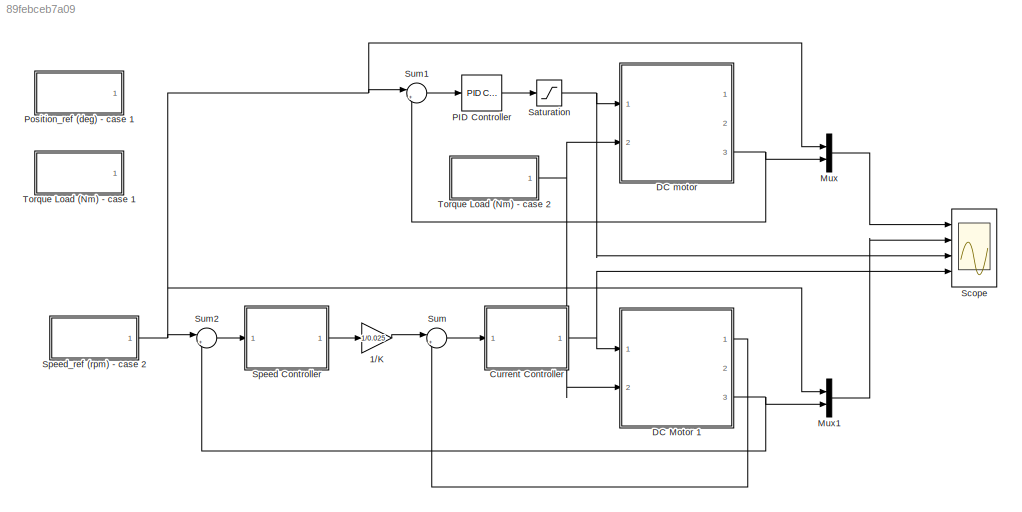
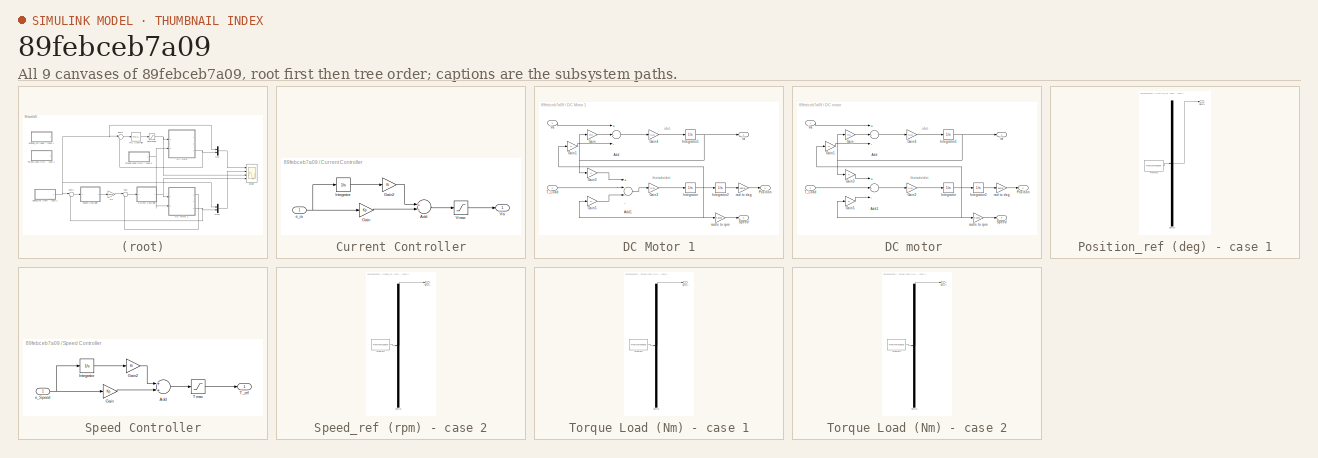
[diagram: thumbnail index - all 9 canvases of the model, root first then tree order]
MODEL slx_89febceb7a09
KIND model
CONFIG AbsTol = auto
CONFIG EnableMultiTasking = off
CONFIG FixedStep = auto
CONFIG MaxStep = auto
CONFIG MinStep = auto
CONFIG RelTol = 1e-3
CONFIG SampleTimeConstraint = Unconstrained
CONFIG Solver = VariableStepAuto
CONFIG SolverName = VariableStepAuto
CONFIG StartTime = 0.0
CONFIG StopTime = 20
BLOCK [Gain] 1//K
  Gain = 1/0.025
  OutDataTypeStr = Inherit: Inherit via internal rule
  ParamDataTypeStr = Inherit: Inherit via internal rule
  SaturateOnIntegerOverflow = off
BLOCK [SubSystem] Current Controller
  Ports = [1, 1]
  RequestExecContextInheritance = off
  Variant = off
BLOCK [Sum] Current Controller/Add
  InputSameDT = off
  OutDataTypeStr = Inherit: Inherit via internal rule
  Ports = [2, 1]
  SaturateOnIntegerOverflow = off
BLOCK [Gain] Current Controller/Gain
  Gain = Kp
  OutDataTypeStr = Inherit: Inherit via internal rule
  ParamDataTypeStr = Inherit: Inherit via internal rule
  SaturateOnIntegerOverflow = off
BLOCK [Gain] Current Controller/Gain2
  Gain = Ki
  OutDataTypeStr = Inherit: Inherit via internal rule
  ParamDataTypeStr = Inherit: Inherit via internal rule
  SaturateOnIntegerOverflow = off
BLOCK [Integrator] Current Controller/Integrator
  Ports = [1, 1]
BLOCK [Outport] Current Controller/Va 
  IconDisplay = Port number
BLOCK [Saturate] Current Controller/Vmax
  InputPortMap = u0
  LowerLimit = -Vmax
  Ports = [1, 1]
  UpperLimit = Vmax
BLOCK [Inport] Current Controller/e_ia
  IconDisplay = Port number
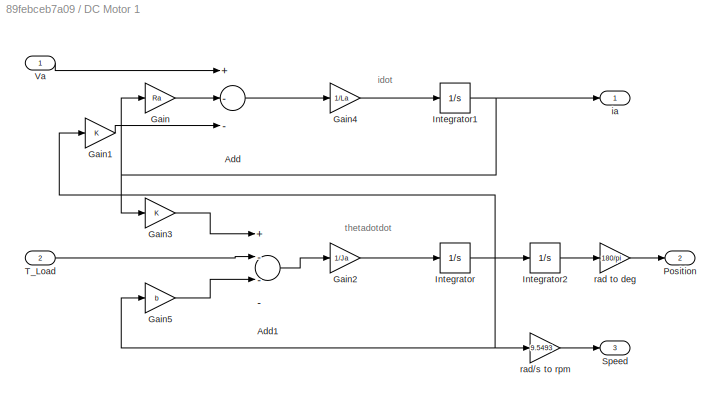
BLOCK [SubSystem] DC Motor 1
  Ports = [2, 3]
  RequestExecContextInheritance = off
  Variant = off
BLOCK [Sum] DC Motor 1/Add
  InputSameDT = off
  Inputs = +--
  OutDataTypeStr = Inherit: Inherit via internal rule
  Ports = [3, 1]
  SaturateOnIntegerOverflow = off
BLOCK [Sum] DC Motor 1/Add1
  InputSameDT = off
  Inputs = +---
  OutDataTypeStr = Inherit: Inherit via internal rule
  Ports = [4, 1]
  SaturateOnIntegerOverflow = off
BLOCK [Gain] DC Motor 1/Gain
  Gain = Ra
  OutDataTypeStr = Inherit: Inherit via internal rule
  ParamDataTypeStr = Inherit: Inherit via internal rule
  SaturateOnIntegerOverflow = off
BLOCK [Gain] DC Motor 1/Gain1
  Gain = K
  OutDataTypeStr = Inherit: Inherit via internal rule
  ParamDataTypeStr = Inherit: Inherit via internal rule
  SaturateOnIntegerOverflow = off
BLOCK [Gain] DC Motor 1/Gain2
  Gain = 1/Ja
  OutDataTypeStr = Inherit: Inherit via internal rule
  ParamDataTypeStr = Inherit: Inherit via internal rule
  SaturateOnIntegerOverflow = off
BLOCK [Gain] DC Motor 1/Gain3
  Gain = K
  OutDataTypeStr = Inherit: Inherit via internal rule
  ParamDataTypeStr = Inherit: Inherit via internal rule
  SaturateOnIntegerOverflow = off
BLOCK [Gain] DC Motor 1/Gain4
  Gain = 1/La
  OutDataTypeStr = Inherit: Inherit via internal rule
  ParamDataTypeStr = Inherit: Inherit via internal rule
  SaturateOnIntegerOverflow = off
BLOCK [Gain] DC Motor 1/Gain5
  Gain = b
  OutDataTypeStr = Inherit: Inherit via internal rule
  ParamDataTypeStr = Inherit: Inherit via internal rule
  SaturateOnIntegerOverflow = off
BLOCK [Integrator] DC Motor 1/Integrator
  Ports = [1, 1]
BLOCK [Integrator] DC Motor 1/Integrator1
  Ports = [1, 1]
BLOCK [Integrator] DC Motor 1/Integrator2
  Ports = [1, 1]
BLOCK [Outport] DC Motor 1/Position
  IconDisplay = Port number
  Port = 2
BLOCK [Outport] DC Motor 1/Speed 
  IconDisplay = Port number
  Port = 3
BLOCK [Inport] DC Motor 1/T_Load
  IconDisplay = Port number
  Port = 2
BLOCK [Inport] DC Motor 1/Va 
  IconDisplay = Port number
BLOCK [Outport] DC Motor 1/ia
  IconDisplay = Port number
BLOCK [Gain] DC Motor 1/rad to deg
  Gain = 180/pi
  OutDataTypeStr = Inherit: Inherit via internal rule
  ParamDataTypeStr = Inherit: Inherit via internal rule
  SaturateOnIntegerOverflow = off
BLOCK [Gain] DC Motor 1/rad//s to rpm
  Gain = 9.5493
  OutDataTypeStr = Inherit: Inherit via internal rule
  ParamDataTypeStr = Inherit: Inherit via internal rule
  SaturateOnIntegerOverflow = off
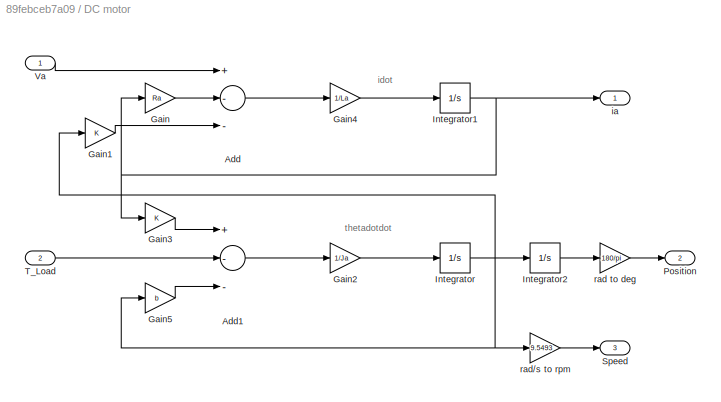
BLOCK [SubSystem] DC motor 
  Ports = [2, 3]
  RequestExecContextInheritance = off
  Variant = off
BLOCK [Sum] DC motor /Add
  InputSameDT = off
  Inputs = +--
  OutDataTypeStr = Inherit: Inherit via internal rule
  Ports = [3, 1]
  SaturateOnIntegerOverflow = off
BLOCK [Sum] DC motor /Add1
  InputSameDT = off
  Inputs = +--
  OutDataTypeStr = Inherit: Inherit via internal rule
  Ports = [3, 1]
  SaturateOnIntegerOverflow = off
BLOCK [Gain] DC motor /Gain
  Gain = Ra
  OutDataTypeStr = Inherit: Inherit via internal rule
  ParamDataTypeStr = Inherit: Inherit via internal rule
  SaturateOnIntegerOverflow = off
BLOCK [Gain] DC motor /Gain1
  Gain = K
  OutDataTypeStr = Inherit: Inherit via internal rule
  ParamDataTypeStr = Inherit: Inherit via internal rule
  SaturateOnIntegerOverflow = off
BLOCK [Gain] DC motor /Gain2
  Gain = 1/Ja
  OutDataTypeStr = Inherit: Inherit via internal rule
  ParamDataTypeStr = Inherit: Inherit via internal rule
  SaturateOnIntegerOverflow = off
BLOCK [Gain] DC motor /Gain3
  Gain = K
  OutDataTypeStr = Inherit: Inherit via internal rule
  ParamDataTypeStr = Inherit: Inherit via internal rule
  SaturateOnIntegerOverflow = off
BLOCK [Gain] DC motor /Gain4
  Gain = 1/La
  OutDataTypeStr = Inherit: Inherit via internal rule
  ParamDataTypeStr = Inherit: Inherit via internal rule
  SaturateOnIntegerOverflow = off
BLOCK [Gain] DC motor /Gain5
  Gain = b
  OutDataTypeStr = Inherit: Inherit via internal rule
  ParamDataTypeStr = Inherit: Inherit via internal rule
  SaturateOnIntegerOverflow = off
BLOCK [Integrator] DC motor /Integrator
  Ports = [1, 1]
BLOCK [Integrator] DC motor /Integrator1
  Ports = [1, 1]
BLOCK [Integrator] DC motor /Integrator2
  Ports = [1, 1]
BLOCK [Outport] DC motor /Position
  IconDisplay = Port number
  Port = 2
BLOCK [Outport] DC motor /Speed 
  IconDisplay = Port number
  Port = 3
BLOCK [Inport] DC motor /T_Load
  IconDisplay = Port number
  Port = 2
BLOCK [Inport] DC motor /Va 
  IconDisplay = Port number
BLOCK [Outport] DC motor /ia
  IconDisplay = Port number
BLOCK [Gain] DC motor /rad to deg
  Gain = 180/pi
  OutDataTypeStr = Inherit: Inherit via internal rule
  ParamDataTypeStr = Inherit: Inherit via internal rule
  SaturateOnIntegerOverflow = off
BLOCK [Gain] DC motor /rad//s to rpm
  Gain = 9.5493
  OutDataTypeStr = Inherit: Inherit via internal rule
  ParamDataTypeStr = Inherit: Inherit via internal rule
  SaturateOnIntegerOverflow = off
BLOCK [Mux] Mux
  DisplayOption = bar
  Inputs = 2
  Ports = [2, 1]
BLOCK [Mux] Mux1
  DisplayOption = bar
  Inputs = 2
  Ports = [2, 1]
BLOCK [Reference] PID Controller  REF=simulink/Continuous/PID Controller
  Ports = [1, 1]
  SourceBlock = simulink/Continuous/PID Controller
  SourceType = PID 1dof
BLOCK [SubSystem] Position_ref (deg) - case 1
  ClipboardFcn = sigbuilder_block('clipboard');
  CloseFcn = sigbuilder_block('close');
  ContinueFcn = sigbuilder_block('continue');
  CopyFcn = sigbuilder_block('copy');
  DeleteFcn = sigbuilder_block('delete');
  LoadFcn = sigbuilder_block('load');
  MaskHideContents = on
  ModelCloseFcn = sigbuilder_block('modelClose');
  NameChangeFcn = sigbuilder_block('namechange');
  OpenFcn = sigbuilder_block('open',[196.5 100.5 550.5 359.25 ]);
  PauseFcn = sigbuilder_block('pause');
  Ports = [0, 1]
  PreSaveFcn = sigbuilder_block('preSave');
  RequestExecContextInheritance = off
  ShowPortLabels = none
  StartFcn = sigbuilder_block('start');
  StopFcn = sigbuilder_block('stop');
  Tag = STV Subsys
  Variant = off
BLOCK [Demux] Position_ref (deg) - case 1/Demux
  Outputs = 1
  Ports = [1, 1]
  Tag = STV Demux
BLOCK [FromWorkspace] Position_ref (deg) - case 1/FromWs
  SampleTime = 0
  Tag = STV FromWs
  VariableName = tuvar
  ZeroCross = on
BLOCK [Outport] Position_ref (deg) - case 1/Signal 1
  IconDisplay = Port number
  Tag = STV Outport
BLOCK [Saturate] Saturation
  InputPortMap = u0
  LowerLimit = -12
  Ports = [1, 1]
  UpperLimit = 12
BLOCK [Scope] Scope
  NumInputPorts = 4
  Ports = [4]
  ScopeSpecificationString = Simulink.scopes.TimeScopeBlockCfg('CurrentConfiguration', extmgr.ConfigurationSet(extmgr.Configuration('Core','General UI',true,'FigureColor',[1 1 1]),extmgr.Configuration('Core','Source UI',true),extmgr.Configuration('Sources','WiredSimulink',true,'DataLoggingDecimateData',true),extmgr.Configuration('Visuals','Time Domain',true,'PlotType','Line','SerializedDisplays',{struct('MinYLimReal','-474.87...<+4697ch>
BLOCK [SubSystem] Speed Controller
  Ports = [1, 1]
  RequestExecContextInheritance = off
  Variant = off
BLOCK [Sum] Speed Controller/Add
  InputSameDT = off
  OutDataTypeStr = Inherit: Inherit via internal rule
  Ports = [2, 1]
  SaturateOnIntegerOverflow = off
BLOCK [Gain] Speed Controller/Gain
  Gain = Kp
  OutDataTypeStr = Inherit: Inherit via internal rule
  ParamDataTypeStr = Inherit: Inherit via internal rule
  SaturateOnIntegerOverflow = off
BLOCK [Gain] Speed Controller/Gain2
  Gain = Ki
  OutDataTypeStr = Inherit: Inherit via internal rule
  ParamDataTypeStr = Inherit: Inherit via internal rule
  SaturateOnIntegerOverflow = off
BLOCK [Integrator] Speed Controller/Integrator
  Ports = [1, 1]
BLOCK [Outport] Speed Controller/T_ref 
  IconDisplay = Port number
BLOCK [Saturate] Speed Controller/Tmax
  InputPortMap = u0
  LowerLimit = -Tmax
  Ports = [1, 1]
  UpperLimit = Tmax
BLOCK [Inport] Speed Controller/e_Speed
  IconDisplay = Port number
BLOCK [SubSystem] Speed_ref (rpm) - case 2
  ClipboardFcn = sigbuilder_block('clipboard');
  CloseFcn = sigbuilder_block('close');
  ContinueFcn = sigbuilder_block('continue');
  CopyFcn = sigbuilder_block('copy');
  DeleteFcn = sigbuilder_block('delete');
  LoadFcn = sigbuilder_block('load');
  MaskHideContents = on
  ModelCloseFcn = sigbuilder_block('modelClose');
  NameChangeFcn = sigbuilder_block('namechange');
  OpenFcn = sigbuilder_block('open',[115.5 51 550.5 359.25 ]);
  PauseFcn = sigbuilder_block('pause');
  Ports = [0, 1]
  PreSaveFcn = sigbuilder_block('preSave');
  RequestExecContextInheritance = off
  ShowPortLabels = none
  StartFcn = sigbuilder_block('start');
  StopFcn = sigbuilder_block('stop');
  Tag = STV Subsys
  Variant = off
BLOCK [Demux] Speed_ref (rpm) - case 2/Demux
  Outputs = 1
  Ports = [1, 1]
  Tag = STV Demux
BLOCK [FromWorkspace] Speed_ref (rpm) - case 2/FromWs
  SampleTime = 0
  Tag = STV FromWs
  VariableName = tuvar
  ZeroCross = on
BLOCK [Outport] Speed_ref (rpm) - case 2/Signal 1
  IconDisplay = Port number
  Tag = STV Outport
BLOCK [Sum] Sum
  IconShape = round
  InputSameDT = off
  Inputs = |+-
  OutDataTypeStr = Inherit: Inherit via internal rule
  Ports = [2, 1]
  SaturateOnIntegerOverflow = off
BLOCK [Sum] Sum1
  IconShape = round
  InputSameDT = off
  Inputs = |+-
  OutDataTypeStr = Inherit: Inherit via internal rule
  Ports = [2, 1]
  SaturateOnIntegerOverflow = off
BLOCK [Sum] Sum2
  IconShape = round
  InputSameDT = off
  Inputs = |+-
  OutDataTypeStr = Inherit: Inherit via internal rule
  Ports = [2, 1]
  SaturateOnIntegerOverflow = off
BLOCK [SubSystem] Torque Load (Nm) - case 1
  ClipboardFcn = sigbuilder_block('clipboard');
  CloseFcn = sigbuilder_block('close');
  ContinueFcn = sigbuilder_block('continue');
  CopyFcn = sigbuilder_block('copy');
  DeleteFcn = sigbuilder_block('delete');
  LoadFcn = sigbuilder_block('load');
  MaskHideContents = on
  ModelCloseFcn = sigbuilder_block('modelClose');
  NameChangeFcn = sigbuilder_block('namechange');
  OpenFcn = sigbuilder_block('open',[196.5 100.5 550.5 359.25 ]);
  PauseFcn = sigbuilder_block('pause');
  Ports = [0, 1]
  PreSaveFcn = sigbuilder_block('preSave');
  RequestExecContextInheritance = off
  ShowPortLabels = none
  StartFcn = sigbuilder_block('start');
  StopFcn = sigbuilder_block('stop');
  Tag = STV Subsys
  Variant = off
BLOCK [Demux] Torque Load (Nm) - case 1/Demux
  Outputs = 1
  Ports = [1, 1]
  Tag = STV Demux
BLOCK [FromWorkspace] Torque Load (Nm) - case 1/FromWs
  SampleTime = 0
  Tag = STV FromWs
  VariableName = tuvar
  ZeroCross = on
BLOCK [Outport] Torque Load (Nm) - case 1/Signal 1
  IconDisplay = Port number
  Tag = STV Outport
BLOCK [SubSystem] Torque Load (Nm) - case 2
  ClipboardFcn = sigbuilder_block('clipboard');
  CloseFcn = sigbuilder_block('close');
  ContinueFcn = sigbuilder_block('continue');
  CopyFcn = sigbuilder_block('copy');
  DeleteFcn = sigbuilder_block('delete');
  LoadFcn = sigbuilder_block('load');
  MaskHideContents = on
  ModelCloseFcn = sigbuilder_block('modelClose');
  NameChangeFcn = sigbuilder_block('namechange');
  OpenFcn = sigbuilder_block('open',[196.5 100.5 550.5 359.25 ]);
  PauseFcn = sigbuilder_block('pause');
  Ports = [0, 1]
  PreSaveFcn = sigbuilder_block('preSave');
  RequestExecContextInheritance = off
  ShowPortLabels = none
  StartFcn = sigbuilder_block('start');
  StopFcn = sigbuilder_block('stop');
  Tag = STV Subsys
  Variant = off
BLOCK [Demux] Torque Load (Nm) - case 2/Demux
  Outputs = 1
  Ports = [1, 1]
  Tag = STV Demux
BLOCK [FromWorkspace] Torque Load (Nm) - case 2/FromWs
  SampleTime = 0
  Tag = STV FromWs
  VariableName = tuvar
  ZeroCross = on
BLOCK [Outport] Torque Load (Nm) - case 2/Signal 3
  IconDisplay = Port number
  Tag = STV Outport
ANNOTATION DC Motor 1: idot
ANNOTATION DC Motor 1: thetadotdot
ANNOTATION DC motor : idot
ANNOTATION DC motor : thetadotdot
LINE 1//K:1 -> Sum:1
LINE Current Controller/Add:1 -> Current Controller/Vmax:1
LINE Current Controller/Gain2:1 -> Current Controller/Add:1
LINE Current Controller/Gain:1 -> Current Controller/Add:2
LINE Current Controller/Integrator:1 -> Current Controller/Gain2:1
LINE Current Controller/Vmax:1 -> Current Controller/Va :1
NET Current Controller/e_ia:1 -> Current Controller/Gain:1, Current Controller/Integrator:1
NET Current Controller:1 -> DC Motor 1:1, Scope:4
LINE DC Motor 1/Add1:1 -> DC Motor 1/Gain2:1
LINE DC Motor 1/Add:1 -> DC Motor 1/Gain4:1
LINE DC Motor 1/Gain1:1 -> DC Motor 1/Add:3
LINE DC Motor 1/Gain2:1 -> DC Motor 1/Integrator:1
LINE DC Motor 1/Gain3:1 -> DC Motor 1/Add1:1
LINE DC Motor 1/Gain4:1 -> DC Motor 1/Integrator1:1
LINE DC Motor 1/Gain5:1 -> DC Motor 1/Add1:3
LINE DC Motor 1/Gain:1 -> DC Motor 1/Add:2
NET DC Motor 1/Integrator1:1 -> DC Motor 1/Gain3:1, DC Motor 1/Gain:1, DC Motor 1/ia:1
LINE DC Motor 1/Integrator2:1 -> DC Motor 1/rad to deg:1
NET DC Motor 1/Integrator:1 -> DC Motor 1/Gain1:1, DC Motor 1/Gain5:1, DC Motor 1/Integrator2:1, DC Motor 1/rad//s to rpm:1
LINE DC Motor 1/T_Load:1 -> DC Motor 1/Add1:2
LINE DC Motor 1/Va :1 -> DC Motor 1/Add:1
LINE DC Motor 1/rad to deg:1 -> DC Motor 1/Position:1
LINE DC Motor 1/rad//s to rpm:1 -> DC Motor 1/Speed :1
LINE DC Motor 1:1 -> Sum:2
NET DC Motor 1:3 -> Mux1:2, Sum2:2
LINE DC motor /Add1:1 -> DC motor /Gain2:1
LINE DC motor /Add:1 -> DC motor /Gain4:1
LINE DC motor /Gain1:1 -> DC motor /Add:3
LINE DC motor /Gain2:1 -> DC motor /Integrator:1
LINE DC motor /Gain3:1 -> DC motor /Add1:1
LINE DC motor /Gain4:1 -> DC motor /Integrator1:1
LINE DC motor /Gain5:1 -> DC motor /Add1:3
LINE DC motor /Gain:1 -> DC motor /Add:2
NET DC motor /Integrator1:1 -> DC motor /Gain3:1, DC motor /Gain:1, DC motor /ia:1
LINE DC motor /Integrator2:1 -> DC motor /rad to deg:1
NET DC motor /Integrator:1 -> DC motor /Gain1:1, DC motor /Gain5:1, DC motor /Integrator2:1, DC motor /rad//s to rpm:1
LINE DC motor /T_Load:1 -> DC motor /Add1:2
LINE DC motor /Va :1 -> DC motor /Add:1
LINE DC motor /rad to deg:1 -> DC motor /Position:1
LINE DC motor /rad//s to rpm:1 -> DC motor /Speed :1
NET DC motor :3 -> Mux:2, Sum1:2
LINE Mux1:1 -> Scope:2
LINE Mux:1 -> Scope:1
LINE PID Controller:1 -> Saturation:1
NET Saturation:1 -> DC motor :1, Scope:3
LINE Speed Controller/Add:1 -> Speed Controller/Tmax:1
LINE Speed Controller/Gain2:1 -> Speed Controller/Add:1
LINE Speed Controller/Gain:1 -> Speed Controller/Add:2
LINE Speed Controller/Integrator:1 -> Speed Controller/Gain2:1
LINE Speed Controller/Tmax:1 -> Speed Controller/T_ref :1
NET Speed Controller/e_Speed:1 -> Speed Controller/Gain:1, Speed Controller/Integrator:1
LINE Speed Controller:1 -> 1//K:1
NET Speed_ref (rpm) - case 2:1 -> Mux1:1, Mux:1, Sum1:1, Sum2:1
LINE Sum1:1 -> PID Controller:1
LINE Sum2:1 -> Speed Controller:1
LINE Sum:1 -> Current Controller:1
NET Torque Load (Nm) - case 2:1 -> DC Motor 1:2, DC motor :2
note: NET lines group one-source signal fan-out (src -> all destinations, sorted); 1:1 wires keep LINE
